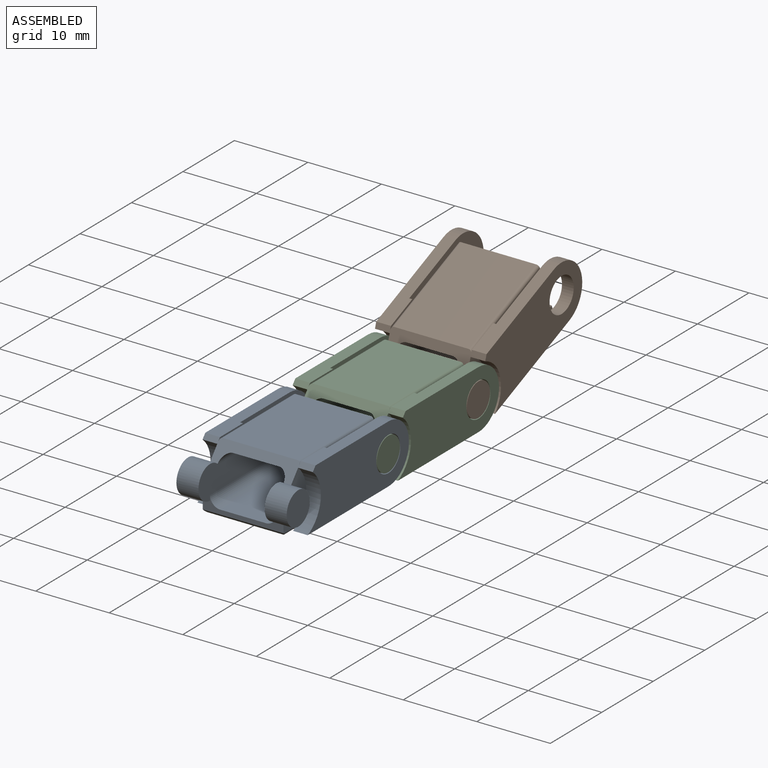
[diagram: assembled view]
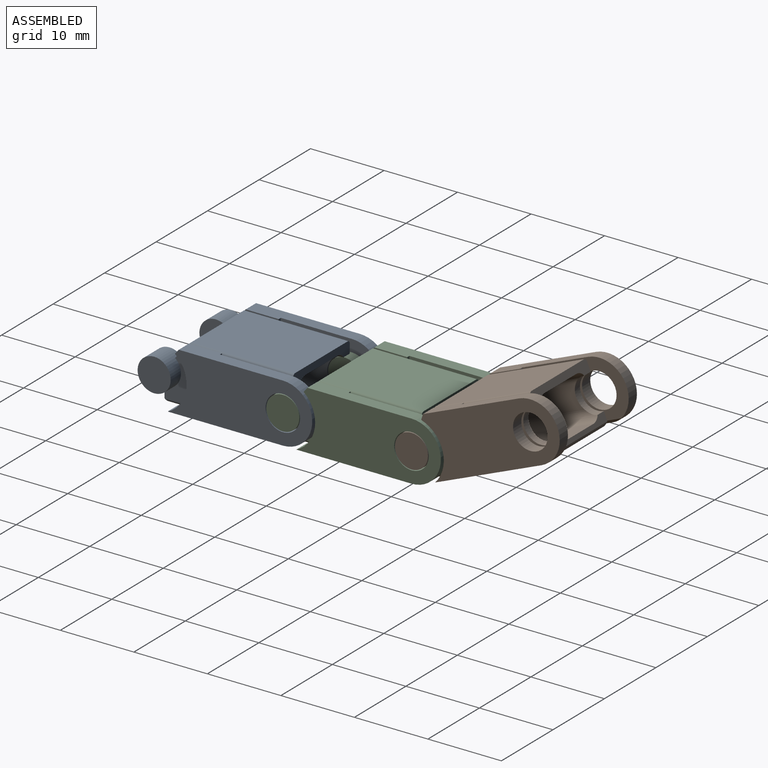
[diagram: assembled view, second angle]
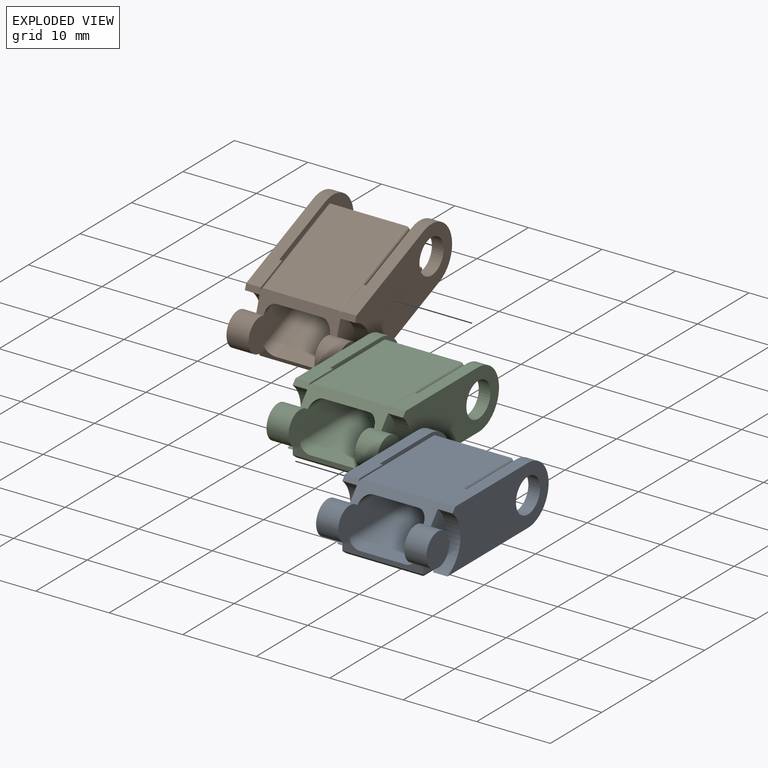
[diagram: exploded view]
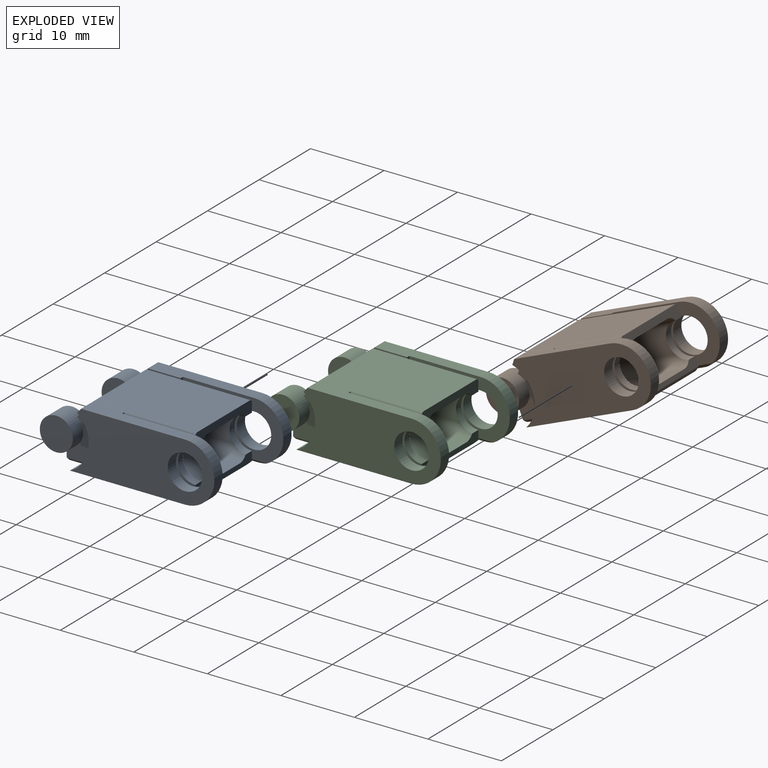
[diagram: exploded view, second angle]
ASSEMBLY  parts=3 mates=2
PART A: 52 faces, bbox 15x23.8x8 mm
  f0: plane 14.14x2mm, normal (0,0,1), area 24.4mm2, adj f8,f37,f39,f41,f44,f45
  f1: cylinder r=4.4mm len=7.37mm, axis (-1,0,0), area 17.7mm2, adj f2,f8,f13,f31,f36
  f2: plane 19.67x8mm, normal (1,0,0), area 117.9mm2, adj f1,f8,f30,f31,f32,f33
  f3: plane 9.67x7.2mm, normal (-1,0,0), area 60.9mm2, adj f4,f10,f15,f24,f45,f47
  f4: plane 11x1.65mm, normal (0,1,0), area 13mm2, adj f3,f6,f9,f14,f15,f16,f17,f23
  f5: plane 6.97x4.4mm, normal (-1,0,0), area 16.1mm2, adj f7,f8,f10,f27,f40
  f6: plane 9.67x7.2mm, normal (1,0,0), area 60.9mm2, adj f4,f12,f14,f24,f35,f46
  f7: plane 11x2mm, normal (0,-1,0), area 8.9mm2, adj f5,f13,f18,f19,f20,f21,f22,f25
  f8: plane 15x2.4mm, normal (0,-0.77,0.64), area 22mm2, adj f0,f1,f2,f5,f9,f13,f14,f15
  f9: plane 14.14x10.2mm, normal (0,0,1), area 144.3mm2, adj f4,f8,f14,f15
  f10: cylinder r=0.4mm len=17.5mm, axis (0,1,0), area 10.7mm2, adj f3,f5,f11,f38,f48,f51
  f11: plane 16.7x10.2mm, normal (0,0,-1), area 170.3mm2, adj f10,f12,f48,f51
  f12: cylinder r=0.4mm len=17.5mm, axis (0,1,0), area 10.7mm2, adj f6,f11,f13,f36,f48,f51
  f13: plane 6.97x4.4mm, normal (1,0,0), area 16.1mm2, adj f1,f7,f8,f12,f25
  f14: cylinder r=0.4mm len=14.48mm, axis (0,1,0), area 9mm2, adj f4,f6,f8,f9,f29
  f15: cylinder r=0.4mm len=14.48mm, axis (0,1,0), area 9mm2, adj f3,f4,f8,f9,f37
  f16: plane 14.98x6.2mm, normal (0,0,-1), area 92.9mm2, adj f4,f8,f17,f23
  f17: cylinder r=1.4mm len=16.16mm, axis (0,1,0), area 33mm2, adj f4,f8,f16,f18,f46
  f18: plane 18.03x4.5mm, normal (-1,0,0), area 57.8mm2, adj f7,f8,f17,f19,f25,f46
  f19: cylinder r=1.4mm len=17.5mm, axis (0,1,0), area 37.6mm2, adj f7,f18,f20,f24,f46
  f20: plane 17.5x6.2mm, normal (0,0,1), area 108.5mm2, adj f7,f19,f21,f24
  f21: cylinder r=1.4mm len=17.5mm, axis (0,1,0), area 37.6mm2, adj f7,f20,f22,f24,f47
  f22: plane 18.03x4.5mm, normal (1,0,0), area 57.8mm2, adj f7,f8,f21,f23,f27,f47
  f23: cylinder r=1.4mm len=16.16mm, axis (0,1,0), area 33mm2, adj f4,f8,f16,f22,f47
  f24: plane 11x1.25mm, normal (0,1,0), area 8.6mm2, adj f3,f6,f19,f20,f21,f46,f47,f48
  f25: cylinder r=2.25mm len=4.5mm, axis (-1,0,0), area 36.9mm2, adj f7,f8,f13,f18,f26
  f26: plane 4.5x4.5mm, normal (1,0,0), area 15.9mm2, adj f25
  f27: cylinder r=2.25mm len=4.5mm, axis (1,0,0), area 36.9mm2, adj f5,f7,f8,f22,f28
  f28: plane 4.5x4.5mm, normal (-1,0,0), area 15.9mm2, adj f27
  f29: plane 4.81x0.4mm, normal (-1,0,0), area 1.9mm2, adj f8,f14,f30,f35
  f30: plane 14.14x2mm, normal (0,0,1), area 24.4mm2, adj f2,f8,f29,f33,f34,f35
  f31: plane 15.67x2mm, normal (0,0,-1), area 23.6mm2, adj f1,f2,f33,f35,f36,f50
  f32: cylinder r=2.35mm len=4.7mm, axis (-1,0,0), area 23.6mm2, adj f2,f34
  f33: cylinder r=4mm len=8mm, axis (-1,0,0), area 19.6mm2, adj f2,f30,f31,f34,f50
  f34: plane 13.67x7.6mm, normal (-1,0,0), area 80.8mm2, adj f30,f32,f33,f35,f50
  f35: plane 8x0.8mm, normal (0,1,0), area 3.3mm2, adj f6,f29,f30,f31,f34,f36,f50
  f36: plane 6x0.4mm, normal (-1,0,0), area 2.3mm2, adj f1,f12,f31,f35
  f37: plane 4.81x0.4mm, normal (1,0,0), area 1.9mm2, adj f0,f8,f15,f45
  f38: plane 6x0.4mm, normal (1,0,0), area 2.3mm2, adj f10,f40,f43,f45
  f39: plane 13.67x7.6mm, normal (1,0,0), area 80.8mm2, adj f0,f41,f42,f45,f49
  f40: cylinder r=4.4mm len=7.37mm, axis (1,0,0), area 17.7mm2, adj f5,f8,f38,f43,f44
  f41: cylinder r=4mm len=8mm, axis (1,0,0), area 19.6mm2, adj f0,f39,f43,f44,f49
  f42: cylinder r=2.35mm len=4.7mm, axis (1,0,0), area 23.6mm2, adj f39,f44
  f43: plane 15.67x2mm, normal (0,0,-1), area 23.6mm2, adj f38,f40,f41,f44,f45,f49
  f44: plane 19.67x8mm, normal (-1,0,0), area 117.9mm2, adj f0,f8,f40,f41,f42,f43
  f45: plane 8x0.8mm, normal (0,1,0), area 3.3mm2, adj f0,f3,f37,f38,f39,f43,f49
  f46: cylinder r=2.35mm len=4.7mm, axis (-1,0,0), area 7.8mm2, adj f4,f6,f17,f18,f19,f24
  f47: cylinder r=2.35mm len=4.7mm, axis (-1,0,0), area 7.8mm2, adj f3,f4,f21,f22,f23,f24
  f48: plane 11x0.4mm, normal (0,0.71,-0.71), area 6.1mm2, adj f10,f11,f12,f24
  f49: plane 11.41x0.4mm, normal (0.71,0,-0.71), area 6.1mm2, adj f39,f41,f43,f45
  f50: plane 11.41x0.4mm, normal (-0.71,0,-0.71), area 6.1mm2, adj f31,f33,f34,f35
  f51: plane 11x0.4mm, normal (0,-0.71,-0.71), area 6.1mm2, adj f7,f10,f11,f12
PART B: same geometry as A
PART C: same geometry as A
PLACE A rot(axis=(0.05,0.97,-0.24),0deg) t=(0.01,-6.49,-1.43)mm
PLACE B rot(axis=(1,0,0),22.5deg) t=(0.01,27.18,5.26)mm
PLACE C rot(axis=(0.04,0.97,-0.24),0deg) t=(0.01,11.01,-1.43)mm
MATE revolute A.f32 <-> C.f1  axis (1,0,0) through (7.51,-6.49,-1.43)mm
MATE revolute B.f1 <-> C.f32  axis (-1,0,0) through (7.51,11.01,-1.43)mm
